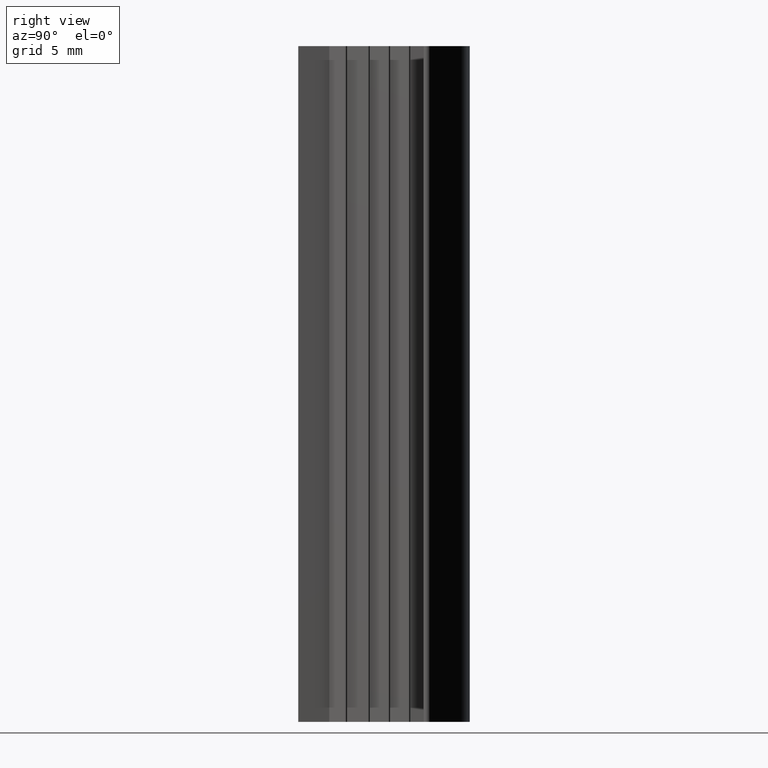
[diagram: clean part render]
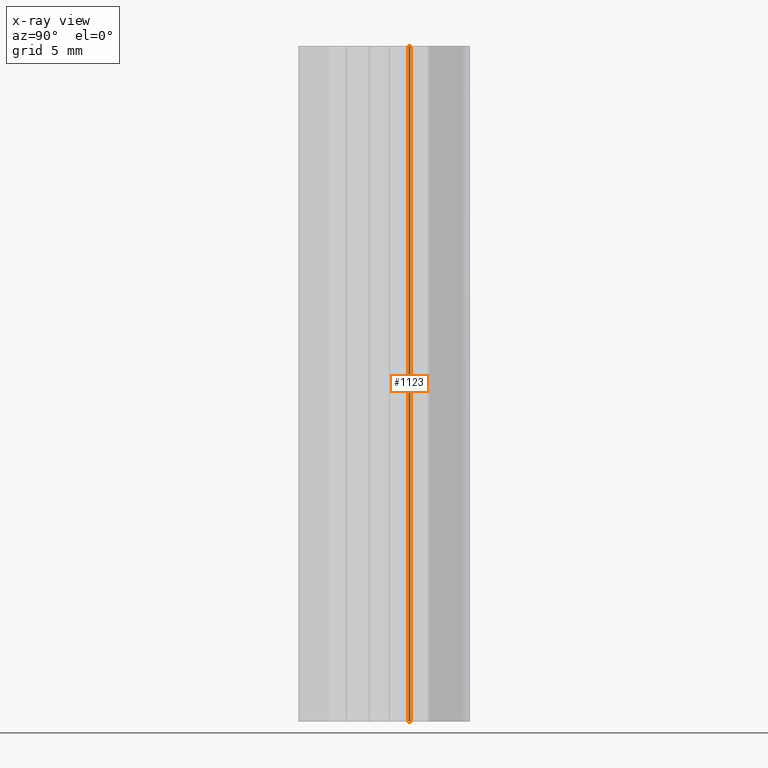
[diagram: x-ray — body ghosted, one internal face saturated and labeled with its STEP entity id]
A machine part, right view, then the same camera in x-ray: the body is ghosted and one INTERNAL B-rep face — a face not visible from any outside direction — is saturated and labeled: STEP entity #1123.
In plain terms, the highlighted cylindrical surface (edge-blend (fillet) strip) has radius 0.1 mm, axis along (0, 0, 1).
Its self-contained STEP definition (entity closure, byte-faithful):
#1065=CARTESIAN_POINT('',(4.093784821583085,8.141518226193512,0.0));
#1066=VERTEX_POINT('',#1065);
#1073=CARTESIAN_POINT('',(4.093784821583085,8.141518226193512,50.0));
#1074=VERTEX_POINT('',#1073);
#1075=CARTESIAN_POINT('',(4.093784821583085,8.141518226193512,0.0));
#1076=DIRECTION('',(0.0,0.0,1.0));
#1077=VECTOR('',#1076,50.0);
#1078=LINE('',#1075,#1077);
#1079=EDGE_CURVE('',#1066,#1074,#1078,.T.);
#1091=CARTESIAN_POINT('',(4.007832173596853,8.192626954798470,0.0));
#1092=DIRECTION('',(0.0,0.0,1.0));
#1093=DIRECTION('',(0.859528205991786,-0.511088312431953,0.0));
#1094=AXIS2_PLACEMENT_3D('',#1091,#1092,#1093);
#1095=CYLINDRICAL_SURFACE('',#1094,0.099999799177101);
#1096=CARTESIAN_POINT('',(4.007832173488623,8.292626753975128,0.0));
#1097=VERTEX_POINT('',#1096);
#1098=CARTESIAN_POINT('',(4.007832173596853,8.192626954798470,0.0));
#1099=DIRECTION('',(0.0,0.0,1.0));
#1100=DIRECTION('',(0.859528205991786,-0.511088312431953,0.0));
#1101=AXIS2_PLACEMENT_3D('',#1098,#1099,#1100);
#1102=CIRCLE('',#1101,0.099999799177101);
#1103=EDGE_CURVE('',#1066,#1097,#1102,.T.);
#1104=ORIENTED_EDGE('',*,*,#1103,.T.);
#1105=CARTESIAN_POINT('',(4.007832173488623,8.292626753975128,50.0));
#1106=VERTEX_POINT('',#1105);
#1107=CARTESIAN_POINT('',(4.007832173488623,8.292626753975128,0.0));
#1108=DIRECTION('',(0.0,0.0,1.0));
#1109=VECTOR('',#1108,50.0);
#1110=LINE('',#1107,#1109);
#1111=EDGE_CURVE('',#1097,#1106,#1110,.T.);
#1112=ORIENTED_EDGE('',*,*,#1111,.T.);
#1113=CARTESIAN_POINT('',(4.007832173596853,8.192626954798470,50.0));
#1114=DIRECTION('',(0.0,0.0,1.0));
#1115=DIRECTION('',(0.859528205991786,-0.511088312431953,0.0));
#1116=AXIS2_PLACEMENT_3D('',#1113,#1114,#1115);
#1117=CIRCLE('',#1116,0.099999799177101);
#1118=EDGE_CURVE('',#1074,#1106,#1117,.T.);
#1119=ORIENTED_EDGE('',*,*,#1118,.F.);
#1120=ORIENTED_EDGE('',*,*,#1079,.F.);
#1121=EDGE_LOOP('',(#1104,#1112,#1119,#1120));
#1122=FACE_OUTER_BOUND('',#1121,.T.);
#1123=ADVANCED_FACE('',(#1122),#1095,.T.);